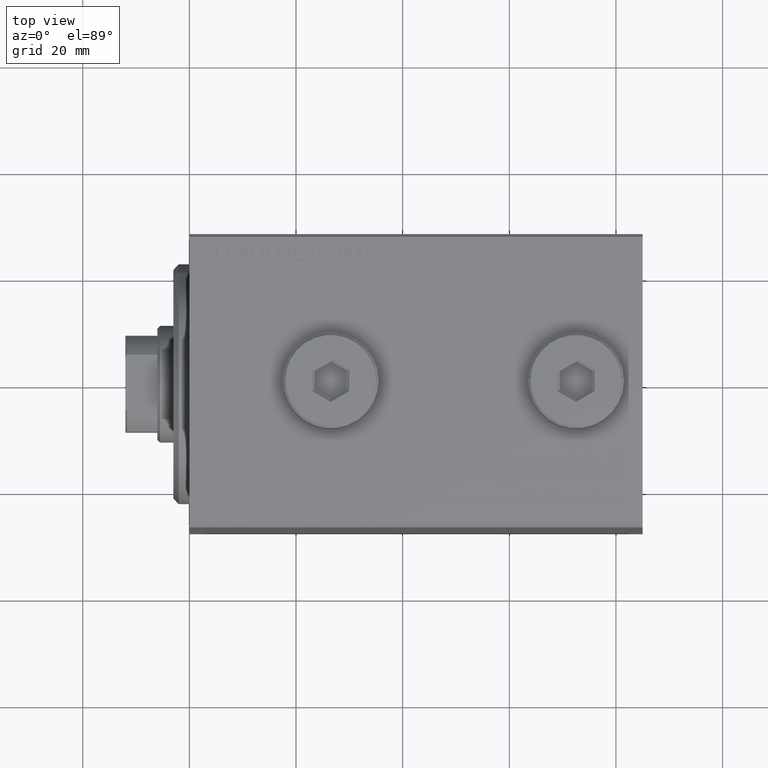
[diagram: clean part render]
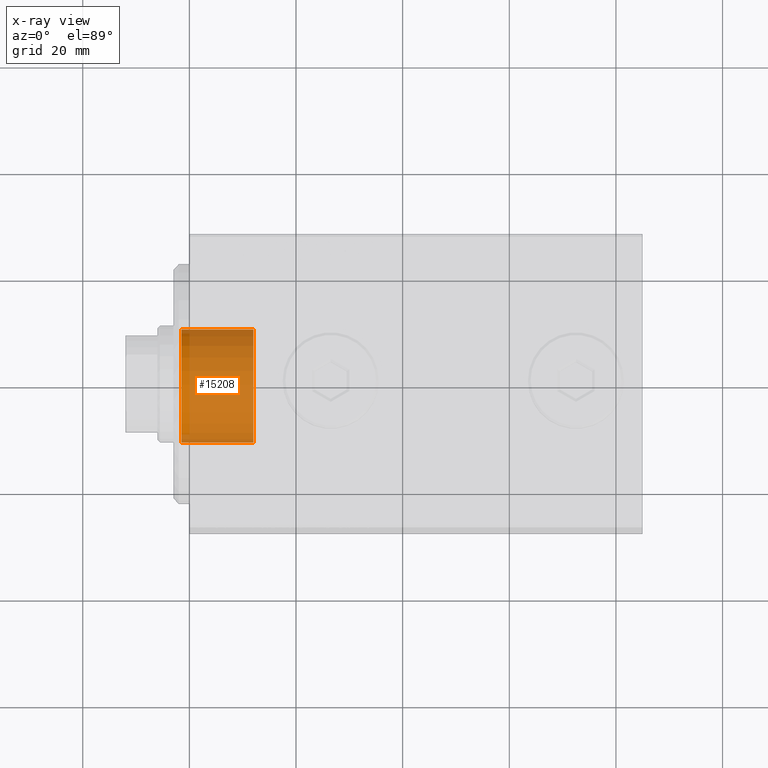
[diagram: x-ray — body ghosted, one internal face saturated and labeled with its STEP entity id]
A machine part, top view, then the same camera in x-ray: the body is ghosted and one INTERNAL B-rep face — a face not visible from any outside direction — is saturated and labeled: STEP entity #15208.
In plain terms, the highlighted cylindrical surface (partial cylindrical patch) has radius 11 mm, axis along (-1, 0, 0).
Its self-contained STEP definition (entity closure, byte-faithful):
#460 = DIRECTION ( 'NONE',  ( 1.000000000000000000, -0.000000000000000000, -0.000000000000000000 ) ) ;
#1437 = CYLINDRICAL_SURFACE ( 'NONE', #13084, 11.00000000000000000 ) ;
#1728 = VECTOR ( 'NONE', #30827, 1000.000000000000000 ) ;
#3301 = EDGE_CURVE ( 'NONE', #44524, #28534, #13673, .T. ) ;
#3506 = ORIENTED_EDGE ( 'NONE', *, *, #7504, .T. ) ;
#3865 = DIRECTION ( 'NONE',  ( 0.000000000000000000, 0.000000000000000000, -1.000000000000000000 ) ) ;
#5802 = FACE_OUTER_BOUND ( 'NONE', #25954, .T. ) ;
#7504 = EDGE_CURVE ( 'NONE', #31646, #44524, #14432, .T. ) ;
#7591 = EDGE_CURVE ( 'NONE', #31646, #14295, #41324, .T. ) ;
#7736 = CARTESIAN_POINT ( 'NONE',  ( 1.499999999999999556, 0.000000000000000000, -11.00000000000000000 ) ) ;
#9288 = AXIS2_PLACEMENT_3D ( 'NONE', #35162, #35826, #3865 ) ;
#11062 = ORIENTED_EDGE ( 'NONE', *, *, #3301, .T. ) ;
#12291 = CARTESIAN_POINT ( 'NONE',  ( -12.00000000000000000, 0.000000000000000000, 0.000000000000000000 ) ) ;
#12899 = VECTOR ( 'NONE', #460, 1000.000000000000000 ) ;
#13084 = AXIS2_PLACEMENT_3D ( 'NONE', #23175, #37095, #16108 ) ;
#13673 = CIRCLE ( 'NONE', #9288, 11.00000000000000000 ) ;
#14295 = VERTEX_POINT ( 'NONE', #37871 ) ;
#14432 = LINE ( 'NONE', #31998, #12899 ) ;
#15208 = ADVANCED_FACE ( 'NONE', ( #5802 ), #1437, .F. ) ;
#16108 = DIRECTION ( 'NONE',  ( 0.000000000000000000, 0.000000000000000000, -1.000000000000000000 ) ) ;
#16901 = CARTESIAN_POINT ( 'NONE',  ( -12.00000000000000000, 0.000000000000000000, -11.00000000000000000 ) ) ;
#18722 = AXIS2_PLACEMENT_3D ( 'NONE', #12291, #43592, #23037 ) ;
#23037 = DIRECTION ( 'NONE',  ( 0.000000000000000000, 0.000000000000000000, -1.000000000000000000 ) ) ;
#23175 = CARTESIAN_POINT ( 'NONE',  ( -12.00000000000000000, 0.000000000000000000, 0.000000000000000000 ) ) ;
#24798 = CARTESIAN_POINT ( 'NONE',  ( -12.00000000000000000, 1.347111479062088405E-15, 11.00000000000000000 ) ) ;
#25954 = EDGE_LOOP ( 'NONE', ( #33069, #3506, #11062, #37434 ) ) ;
#28534 = VERTEX_POINT ( 'NONE', #7736 ) ;
#30827 = DIRECTION ( 'NONE',  ( 1.000000000000000000, -0.000000000000000000, -0.000000000000000000 ) ) ;
#31646 = VERTEX_POINT ( 'NONE', #24798 ) ;
#31998 = CARTESIAN_POINT ( 'NONE',  ( -12.00000000000000000, 1.347111479062088405E-15, 11.00000000000000000 ) ) ;
#33069 = ORIENTED_EDGE ( 'NONE', *, *, #7591, .F. ) ;
#33640 = LINE ( 'NONE', #16901, #1728 ) ;
#35162 = CARTESIAN_POINT ( 'NONE',  ( 1.499999999999999556, 0.000000000000000000, 0.000000000000000000 ) ) ;
#35826 = DIRECTION ( 'NONE',  ( 1.000000000000000000, 0.000000000000000000, 0.000000000000000000 ) ) ;
#37095 = DIRECTION ( 'NONE',  ( 1.000000000000000000, -0.000000000000000000, -0.000000000000000000 ) ) ;
#37434 = ORIENTED_EDGE ( 'NONE', *, *, #39115, .F. ) ;
#37871 = CARTESIAN_POINT ( 'NONE',  ( -12.00000000000000000, 0.000000000000000000, -11.00000000000000000 ) ) ;
#39115 = EDGE_CURVE ( 'NONE', #14295, #28534, #33640, .T. ) ;
#41324 = CIRCLE ( 'NONE', #18722, 11.00000000000000000 ) ;
#43026 = CARTESIAN_POINT ( 'NONE',  ( 1.499999999999999556, 1.347111479062088405E-15, 11.00000000000000000 ) ) ;
#43592 = DIRECTION ( 'NONE',  ( 1.000000000000000000, 0.000000000000000000, 0.000000000000000000 ) ) ;
#44524 = VERTEX_POINT ( 'NONE', #43026 ) ;